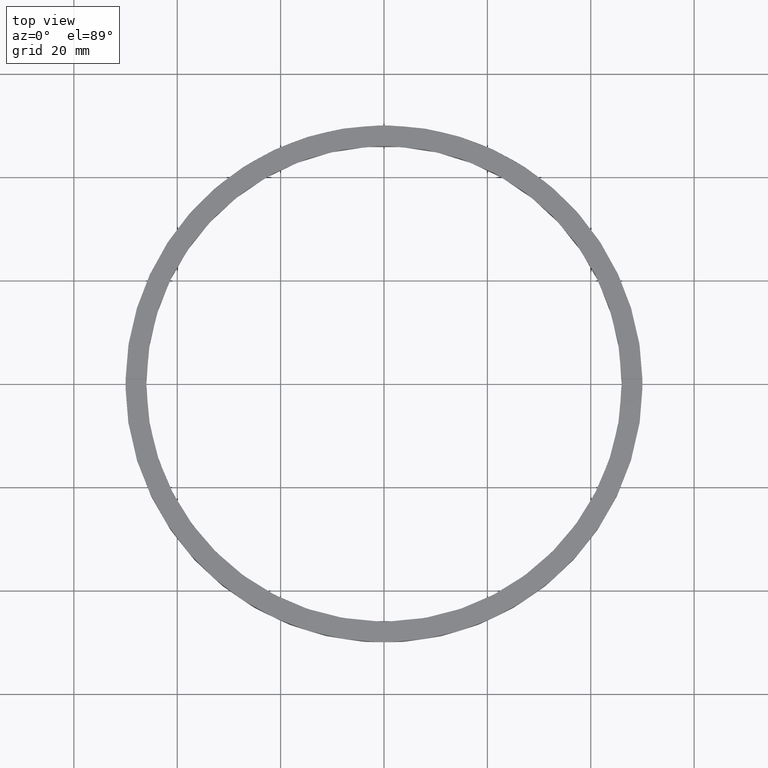
[diagram: clean part render]
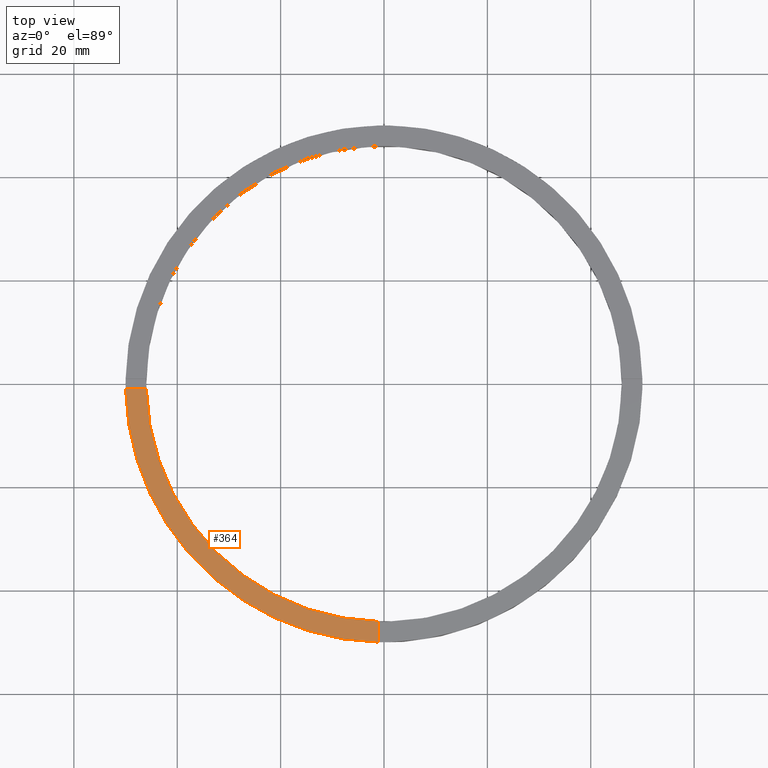
[diagram: same view with one face highlighted and labeled with its STEP entity id]
A machine part, top view. The second image highlights one B-rep face of the part: STEP entity #364.
In plain terms, the highlighted planar face has unit normal (0, 0, 1).
Its self-contained STEP definition (entity closure, byte-faithful):
#2 = DIRECTION ( 'NONE',  ( 1.000000000000000000, 0.000000000000000000, -0.000000000000000000 ) ) ;
#6 = PLANE ( 'NONE',  #493 ) ;
#39 = EDGE_CURVE ( 'NONE', #370, #166, #581, .T. ) ;
#76 = CARTESIAN_POINT ( 'NONE',  ( -1.000000000000156763, -49.98999899979995121, 5.000000000000000000 ) ) ;
#81 = CARTESIAN_POINT ( 'NONE',  ( -1.000000000000157208, -45.98912915026767223, 5.000000000000000000 ) ) ;
#134 = VERTEX_POINT ( 'NONE', #76 ) ;
#139 = DIRECTION ( 'NONE',  ( 0.000000000000000000, 0.000000000000000000, 1.000000000000000000 ) ) ;
#145 = CARTESIAN_POINT ( 'NONE',  ( -49.98999899979995121, -1.000000000000031530, 5.000000000000000000 ) ) ;
#156 = VERTEX_POINT ( 'NONE', #145 ) ;
#162 = DIRECTION ( 'NONE',  ( 0.000000000000000000, 0.000000000000000000, 1.000000000000000000 ) ) ;
#166 = VERTEX_POINT ( 'NONE', #81 ) ;
#168 = CARTESIAN_POINT ( 'NONE',  ( 0.000000000000000000, 0.000000000000000000, 5.000000000000000000 ) ) ;
#240 = CARTESIAN_POINT ( 'NONE',  ( -40.00000000000018474, -1.000000000000029532, 5.000000000000000000 ) ) ;
#253 = FACE_OUTER_BOUND ( 'NONE', #663, .T. ) ;
#254 = VECTOR ( 'NONE', #517, 1000.000000000000000 ) ;
#260 = CIRCLE ( 'NONE', #274, 50.00000000000000000 ) ;
#269 = CARTESIAN_POINT ( 'NONE',  ( 0.000000000000000000, 0.000000000000000000, 5.000000000000000000 ) ) ;
#274 = AXIS2_PLACEMENT_3D ( 'NONE', #168, #380, #702 ) ;
#293 = ORIENTED_EDGE ( 'NONE', *, *, #484, .F. ) ;
#364 = ADVANCED_FACE ( 'NONE', ( #253 ), #6, .T. ) ;
#370 = VERTEX_POINT ( 'NONE', #605 ) ;
#375 = CARTESIAN_POINT ( 'NONE',  ( 0.000000000000000000, 0.000000000000000000, 5.000000000000000000 ) ) ;
#380 = DIRECTION ( 'NONE',  ( 0.000000000000000000, 0.000000000000000000, 1.000000000000000000 ) ) ;
#440 = ORIENTED_EDGE ( 'NONE', *, *, #614, .T. ) ;
#454 = CARTESIAN_POINT ( 'NONE',  ( -1.000000000000158096, -40.00000000000018474, 5.000000000000000000 ) ) ;
#484 = EDGE_CURVE ( 'NONE', #166, #134, #777, .T. ) ;
#493 = AXIS2_PLACEMENT_3D ( 'NONE', #269, #162, #2 ) ;
#517 = DIRECTION ( 'NONE',  ( 1.301042606982605074E-16, -1.000000000000000000, 0.000000000000000000 ) ) ;
#527 = LINE ( 'NONE', #240, #783 ) ;
#556 = AXIS2_PLACEMENT_3D ( 'NONE', #375, #139, #759 ) ;
#581 = CIRCLE ( 'NONE', #556, 46.00000000000000000 ) ;
#605 = CARTESIAN_POINT ( 'NONE',  ( -45.98912915026767223, -1.000000000000030642, 5.000000000000000000 ) ) ;
#614 = EDGE_CURVE ( 'NONE', #156, #134, #260, .T. ) ;
#621 = DIRECTION ( 'NONE',  ( 1.000000000000000000, 1.951563910473907735E-16, -0.000000000000000000 ) ) ;
#643 = EDGE_CURVE ( 'NONE', #156, #370, #527, .T. ) ;
#647 = ORIENTED_EDGE ( 'NONE', *, *, #643, .F. ) ;
#663 = EDGE_LOOP ( 'NONE', ( #293, #699, #647, #440 ) ) ;
#699 = ORIENTED_EDGE ( 'NONE', *, *, #39, .F. ) ;
#702 = DIRECTION ( 'NONE',  ( 1.000000000000000000, 0.000000000000000000, 0.000000000000000000 ) ) ;
#759 = DIRECTION ( 'NONE',  ( 1.000000000000000000, 0.000000000000000000, 0.000000000000000000 ) ) ;
#777 = LINE ( 'NONE', #454, #254 ) ;
#783 = VECTOR ( 'NONE', #621, 1000.000000000000000 ) ;